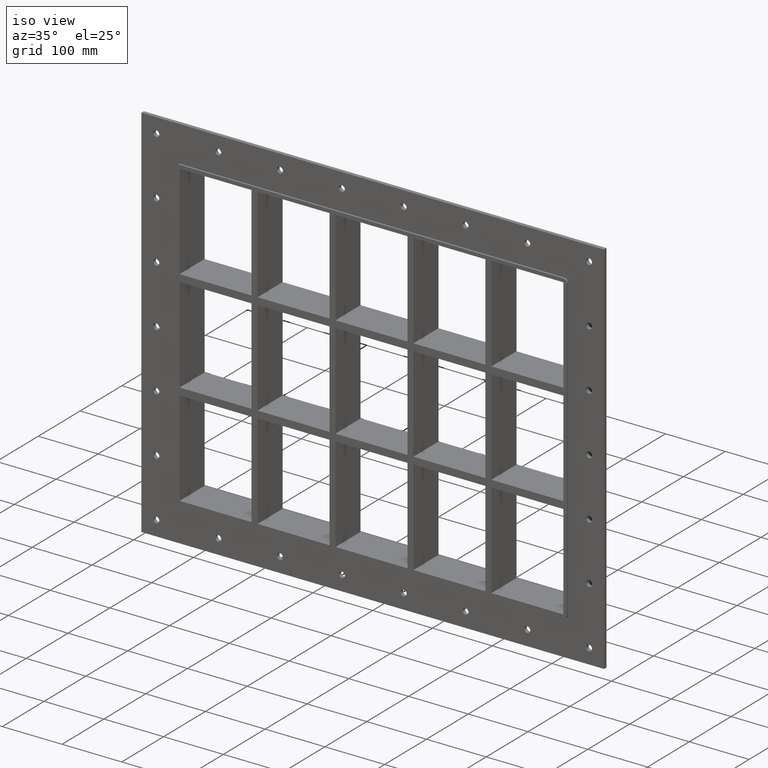
[diagram: clean part render]
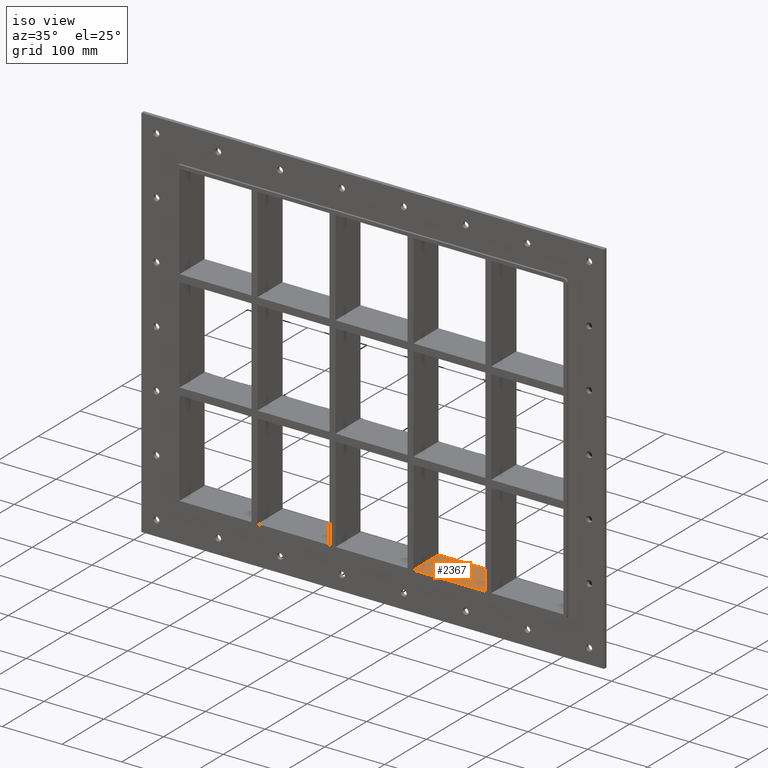
[diagram: same view with one face highlighted and labeled with its STEP entity id]
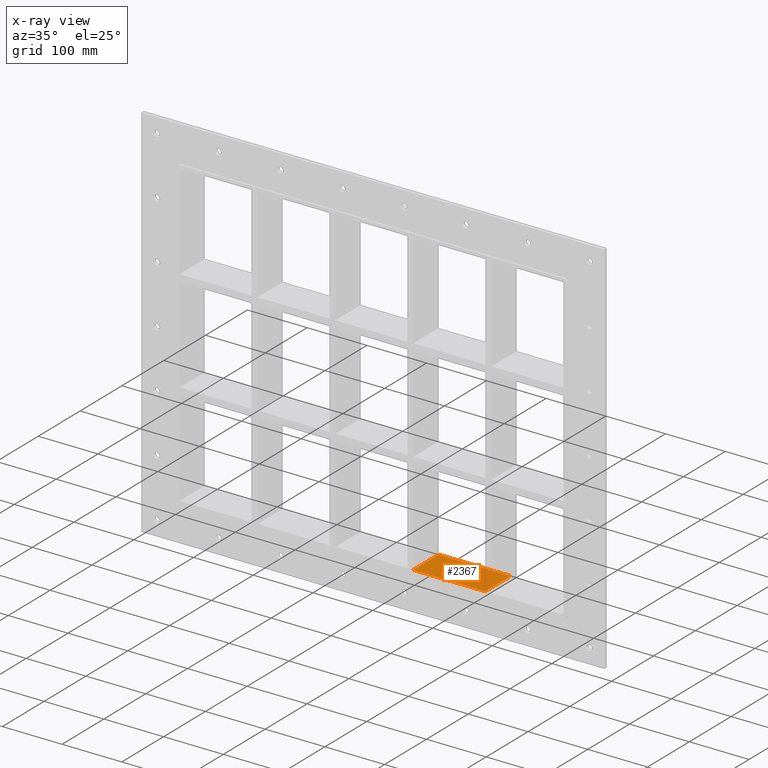
[diagram: x-ray of the same camera — body ghosted, the highlighted face saturated]
A machine part, iso view. The second image highlights one B-rep face of the part: STEP entity #2367.
The next image is the same camera in x-ray: the body ghosted, the highlighted face saturated — about 0% of this face is hidden behind the body in this view.
In plain terms, the highlighted planar face has unit normal (0, 0, -1).
Its self-contained STEP definition (entity closure, byte-faithful):
#1900=CARTESIAN_POINT('',(190.74999999999875,57.0,-251.25000000000006));
#1901=VERTEX_POINT('',#1900);
#1918=CARTESIAN_POINT('',(70.249999999992738,57.0,-251.24999999998431));
#1919=VERTEX_POINT('',#1918);
#1926=CARTESIAN_POINT('',(70.249999999992724,57.0,-251.25000000000006));
#1927=DIRECTION('',(1.0,0.0,0.0));
#1928=VECTOR('',#1927,120.50000000000603);
#1929=LINE('',#1926,#1928);
#1930=EDGE_CURVE('',#1919,#1901,#1929,.T.);
#2018=CARTESIAN_POINT('',(190.74999999999875,-3.0,-251.25000000000006));
#2019=VERTEX_POINT('',#2018);
#2020=CARTESIAN_POINT('',(190.74999999999875,-3.0,-251.25000000000006));
#2021=DIRECTION('',(0.0,1.0,0.0));
#2022=VECTOR('',#2021,60.000000000000007);
#2023=LINE('',#2020,#2022);
#2024=EDGE_CURVE('',#2019,#1901,#2023,.T.);
#2182=CARTESIAN_POINT('',(70.249999999992738,-3.0,-251.24999999998434));
#2183=VERTEX_POINT('',#2182);
#2190=CARTESIAN_POINT('',(70.249999999992738,57.000000000000007,-251.25000000000006));
#2191=DIRECTION('',(0.0,-1.0,0.0));
#2192=VECTOR('',#2191,60.000000000000007);
#2193=LINE('',#2190,#2192);
#2194=EDGE_CURVE('',#1919,#2183,#2193,.T.);
#2351=CARTESIAN_POINT('',(321.25000000000011,0.0,-251.25000000000006));
#2352=DIRECTION('',(0.0,0.0,-1.0));
#2353=DIRECTION('',(-1.0,0.0,0.0));
#2354=AXIS2_PLACEMENT_3D('',#2351,#2352,#2353);
#2355=PLANE('',#2354);
#2356=ORIENTED_EDGE('',*,*,#2024,.T.);
#2357=ORIENTED_EDGE('',*,*,#1930,.F.);
#2358=ORIENTED_EDGE('',*,*,#2194,.T.);
#2359=CARTESIAN_POINT('',(190.74999999999875,-3.0,-251.25000000000006));
#2360=DIRECTION('',(-1.0,0.0,0.0));
#2361=VECTOR('',#2360,120.50000000000603);
#2362=LINE('',#2359,#2361);
#2363=EDGE_CURVE('',#2019,#2183,#2362,.T.);
#2364=ORIENTED_EDGE('',*,*,#2363,.F.);
#2365=EDGE_LOOP('',(#2356,#2357,#2358,#2364));
#2366=FACE_OUTER_BOUND('',#2365,.T.);
#2367=ADVANCED_FACE('',(#2366),#2355,.F.);